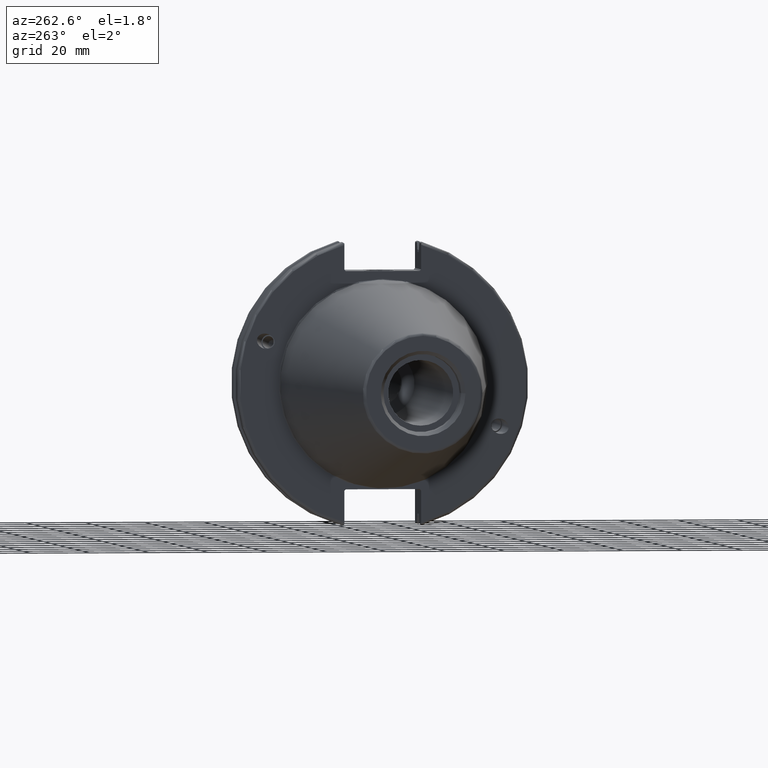
[diagram: clean part render]
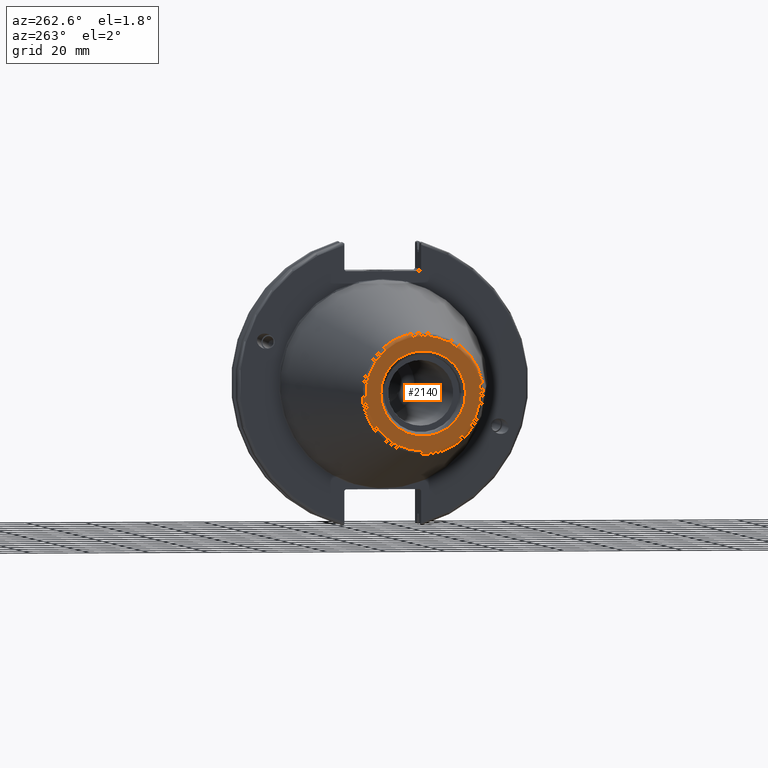
[diagram: same view with one face highlighted and labeled with its STEP entity id]
A machine part, auxiliary view. The second image highlights one B-rep face of the part: STEP entity #2140.
In plain terms, the highlighted planar face has unit normal (-1, 0, 0).
Its self-contained STEP definition (entity closure, byte-faithful):
#199=FACE_BOUND('',#464,.T.);
#228=PLANE('',#2409);
#323=FACE_OUTER_BOUND('',#463,.T.);
#463=EDGE_LOOP('',(#1766));
#464=EDGE_LOOP('',(#1767));
#868=CIRCLE('',#2408,19.2435889303637);
#869=CIRCLE('',#2410,14.2875);
#1057=VERTEX_POINT('',#4028);
#1058=VERTEX_POINT('',#4032);
#1320=EDGE_CURVE('',#1057,#1057,#868,.T.);
#1321=EDGE_CURVE('',#1058,#1058,#869,.T.);
#1766=ORIENTED_EDGE('',*,*,#1320,.F.);
#1767=ORIENTED_EDGE('',*,*,#1321,.T.);
#2140=ADVANCED_FACE('',(#323,#199),#228,.T.);
#2408=AXIS2_PLACEMENT_3D('',#4030,#2865,#2866);
#2409=AXIS2_PLACEMENT_3D('',#4031,#2867,#2868);
#2410=AXIS2_PLACEMENT_3D('',#4033,#2869,#2870);
#2865=DIRECTION('center_axis',(1.,0.,0.));
#2866=DIRECTION('ref_axis',(0.,-1.,1.83697019872103E-16));
#2867=DIRECTION('center_axis',(-1.,0.,0.));
#2868=DIRECTION('ref_axis',(0.,0.,1.));
#2869=DIRECTION('center_axis',(1.,0.,0.));
#2870=DIRECTION('ref_axis',(0.,0.,-1.));
#4028=CARTESIAN_POINT('',(-101.6,-2.35665995876774E-15,19.2435889303637));
#4030=CARTESIAN_POINT('Origin',(-101.6,0.,0.));
#4031=CARTESIAN_POINT('Origin',(-101.6,20.1083333333333,0.));
#4032=CARTESIAN_POINT('',(-101.6,-14.2875,-1.74971411428178E-15));
#4033=CARTESIAN_POINT('Origin',(-101.6,0.,0.));